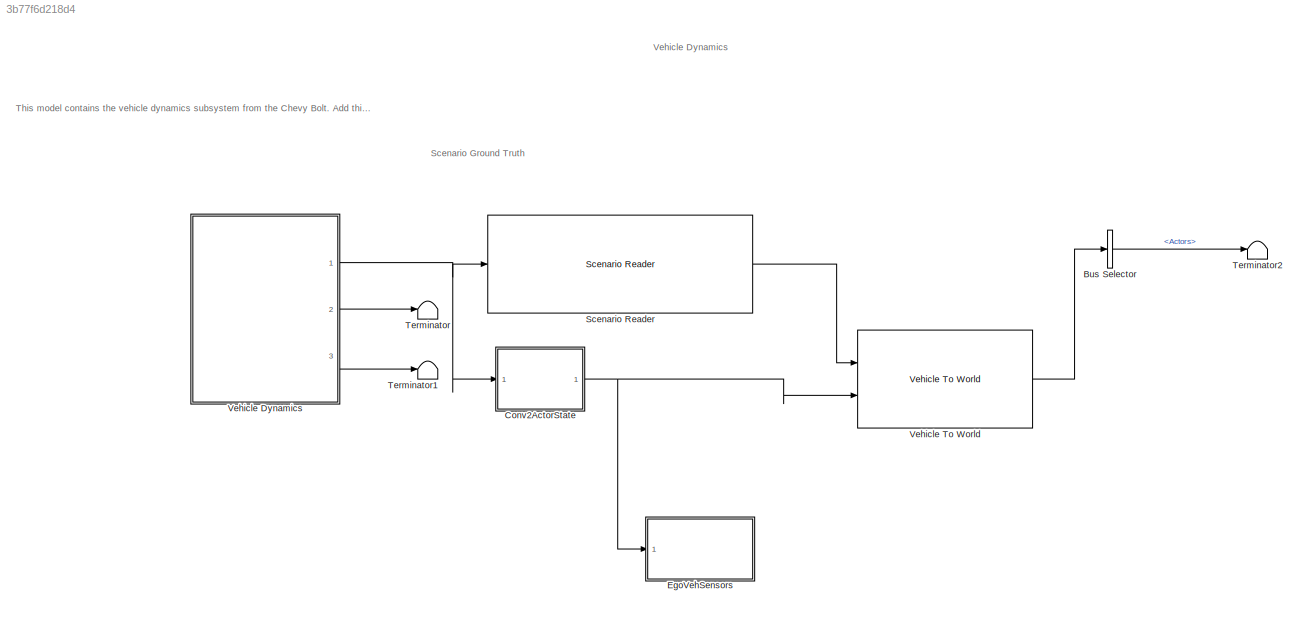
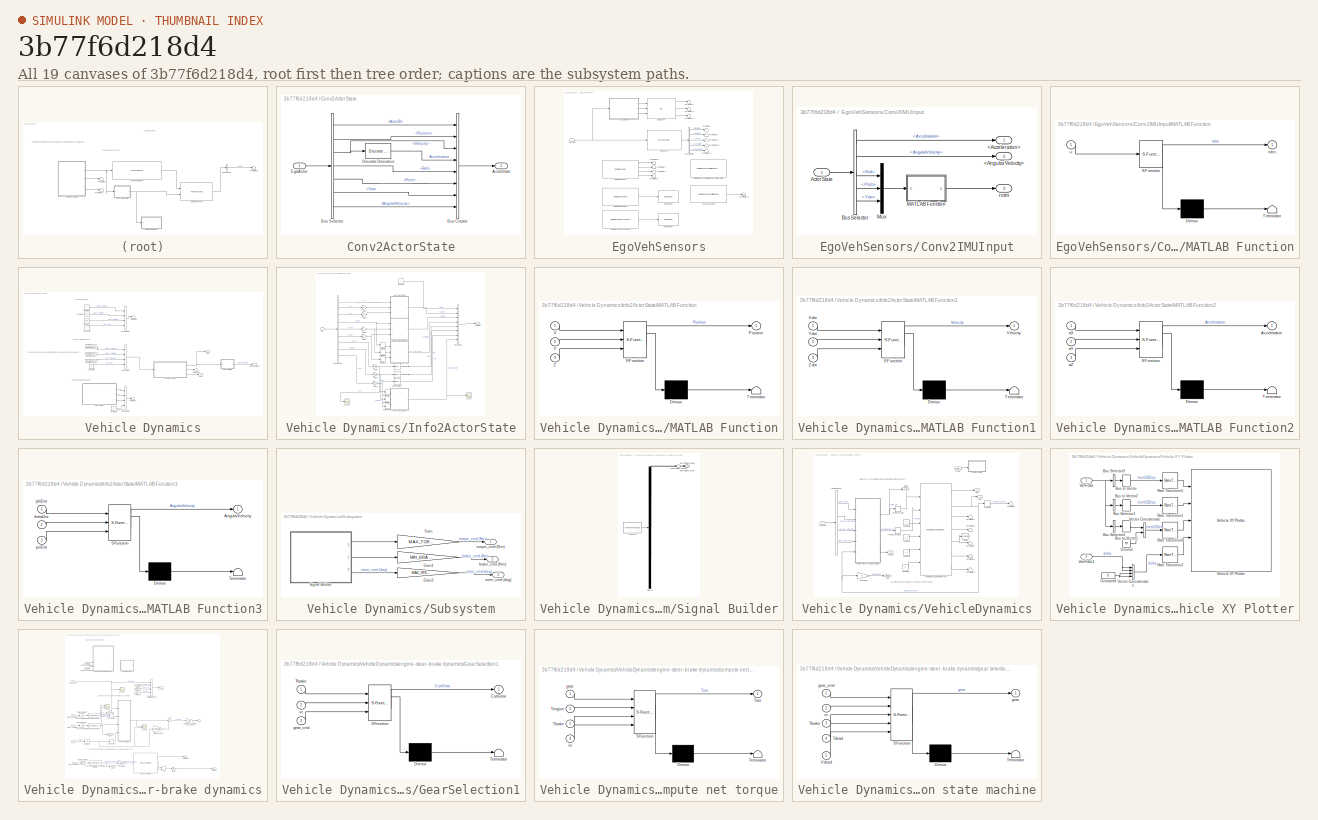
[diagram: thumbnail index - all 19 canvases of the model, root first then tree order]
MODEL slx_3b77f6d218d4
KIND model
CONFIG AbsTol = auto
CONFIG EnableMultiTasking = off
CONFIG FixedStep = auto
CONFIG MaxStep = auto
CONFIG MinStep = auto
CONFIG RelTol = 1e-3
CONFIG SampleTimeConstraint = Unconstrained
CONFIG SolverName = FixedStepAuto
CONFIG StartTime = 0.0
CONFIG StopTime = stopTime
WORKSPACE source: mxarray member
WORKSPACE firstWarning = 1
WORKSPACE originalScenarioChecksum = '114339432DE22364D47BB28FC96DC10C'
BLOCK [BusSelector] Bus Selector
  OutputSignals = Actors
  Ports = [1, 1]
BLOCK [SubSystem] Conv2ActorState
  Ports = [1, 1]
  RequestExecContextInheritance = off
  TreatAsAtomicUnit = on
BLOCK [Outport] Conv2ActorState/ActorState
BLOCK [BusCreator] Conv2ActorState/Bus Creator
  DisplayOption = bar
  InheritFromInputs = on
  Inputs = ActorID,Position,Velocity,Acceleration,Roll,Pitch,Yaw,AngularVelocity
  NonVirtualBus = on
  OutDataTypeStr = Bus: BusActorState
  Ports = [8, 1]
BLOCK [BusSelector] Conv2ActorState/Bus Selector
  OutputSignals = ActorID,Position,Velocity,Roll,Pitch,Yaw,AngularVelocity
  Ports = [1, 7]
BLOCK [Reference] Conv2ActorState/Discrete Derivative  REF=simulink/Discrete/Discrete Derivative
  Ports = [1, 1]
  SourceBlock = simulink/Discrete/Discrete Derivative
  SourceProductBaseCode = SL
  SourceType = Discrete Derivative
BLOCK [Inport] Conv2ActorState/EgoActor
BLOCK [SubSystem] EgoVehSensors
  Ports = [1]
  RequestExecContextInheritance = off
BLOCK [Inport] EgoVehSensors/ActorState
BLOCK [BusSelector] EgoVehSensors/Bus Selector
  OutputSignals = Orientation,Position,Velocity,Acceleration,AngularVelocity
  Ports = [1, 5]
BLOCK [SubSystem] EgoVehSensors/Conv2IMUInput
  Ports = [1, 3]
  RequestExecContextInheritance = off
  TreatAsAtomicUnit = on
BLOCK [Outport] EgoVehSensors/Conv2IMUInput/<Acceleration>
BLOCK [Outport] EgoVehSensors/Conv2IMUInput/<AngularVelocity>
  Port = 2
BLOCK [Inport] EgoVehSensors/Conv2IMUInput/ActorState
BLOCK [BusSelector] EgoVehSensors/Conv2IMUInput/Bus Selector
  OutputSignals = Acceleration,AngularVelocity,Roll,Pitch,Yaw
  Ports = [1, 5]
BLOCK [SubSystem] EgoVehSensors/Conv2IMUInput/MATLAB Function
  ErrorFcn = Stateflow.Translate.translate
  PermitHierarchicalResolution = ExplicitOnly
  Ports = [1, 1]
  RequestExecContextInheritance = off
  SFBlockType = MATLAB Function
  TreatAsAtomicUnit = on
BLOCK [Demux] EgoVehSensors/Conv2IMUInput/MATLAB Function/ Demux 
  Outputs = 1
  Ports = [1, 1]
BLOCK [S-Function] EgoVehSensors/Conv2IMUInput/MATLAB Function/ SFunction 
  EnableBusSupport = on
  FunctionName = sf_sfun
  PortCounts = [1 2]
  Ports = [1, 2]
  SFcnIsStateOwnerBlock = off
  SFunctionDeploymentMode = off
  Tag = Stateflow S-Function 5
BLOCK [Terminator] EgoVehSensors/Conv2IMUInput/MATLAB Function/ Terminator 
BLOCK [Outport] EgoVehSensors/Conv2IMUInput/MATLAB Function/rotm
BLOCK [Inport] EgoVehSensors/Conv2IMUInput/MATLAB Function/u
BLOCK [Mux] EgoVehSensors/Conv2IMUInput/Mux
  DisplayOption = bar
  Inputs = 3
  Ports = [3, 1]
BLOCK [Outport] EgoVehSensors/Conv2IMUInput/rotm
  Port = 3
BLOCK [Reference] EgoVehSensors/Forward Looking  REF=sim3dprobsensorlib/Simulation 3D Probabilistic Radar
  Commented = on
  Ports = [0, 1]
  Priority = 1
  SourceBlock = sim3dprobsensorlib/Simulation 3D Probabilistic Radar
  SourceProductBaseCode = AE,DR,UV,VE
  SourceType = Simulation 3D Probabilistic Radar
BLOCK [Reference] EgoVehSensors/IMUSensor  REF=mspsensorlib/IMU
  Ports = [3, 3]
  SourceBlock = mspsensorlib/IMU
  SourceProductBaseCode = TF,NV
  SourceType = fusion.simulink.imuSensor
BLOCK [MATLABSystem] EgoVehSensors/INS Sensor
  AccelerationAccuracy = 0.05
  AngularVelocityAccuracy = 0.5
  MaskDisplay = disp('insSensorBlk');\nport_label('input',1,'ActorStateIn');\nport_label('output',1,'insMeas');
  MaskType = insSensorBlk
  MountingLocation = [ 0, 0, 0 ]
  OutputBusName1 = BusINSMeas
  PitchAccuracy = 0.2
  Ports = [1, 1]
  PositionAccuracy = [ 1, 1, 1 ]
  PositionErrorFactor = [ 0, 0, 0 ]
  RollAccuracy = 0.2
  SimulateUsing = Interpreted execution
  System = insSensorBlk
  VelocityAccuracy = 0.1
  YawAccuracy = 1
BLOCK [Reference] EgoVehSensors/Simulation 3D Camera  REF=sim3dcameralib/Simulation 3D Camera
  Commented = on
  Ports = [0, 1]
  Priority = 1
  SourceBlock = sim3dcameralib/Simulation 3D Camera
  SourceProductBaseCode = AE,DR,UV,VE
  SourceType = Simulation 3D Camera
BLOCK [Reference] EgoVehSensors/Simulation 3D Fisheye Camera  REF=sim3dcameralib/Simulation 3D Fisheye Camera
  Commented = on
  Ports = [0, 1]
  Priority = 1
  SourceBlock = sim3dcameralib/Simulation 3D Fisheye Camera
  SourceProductBaseCode = AE,DR,UV,VE
  SourceType = Simulation 3D Fisheye Camera
BLOCK [Reference] EgoVehSensors/Simulation 3D Lidar  REF=sim3dphyssensorlib/Simulation 3D Lidar
  Commented = on
  Ports = [0, 4]
  Priority = 1
  SourceBlock = sim3dphyssensorlib/Simulation 3D Lidar
  SourceProductBaseCode = AE,DR,UV,VE
  SourceType = Simulation 3D Lidar
BLOCK [Reference] EgoVehSensors/Simulation 3D Probabilistic Radar Configuration  REF=sim3dprobsensorlib/Simulation 3D Probabilistic Radar Configuration
  Commented = on
  Ports = []
  SourceBlock = sim3dprobsensorlib/Simulation 3D Probabilistic Radar Configuration
  SourceProductBaseCode = AE,DR,UV,VE
  SourceType = Simulation 3D Probabilistic Radar Configuration
BLOCK [Terminator] EgoVehSensors/Terminator
BLOCK [Terminator] EgoVehSensors/Terminator1
  Commented = on
BLOCK [Terminator] EgoVehSensors/Terminator10
BLOCK [Terminator] EgoVehSensors/Terminator11
BLOCK [Terminator] EgoVehSensors/Terminator12
  Commented = on
BLOCK [Terminator] EgoVehSensors/Terminator2
BLOCK [Terminator] EgoVehSensors/Terminator3
BLOCK [Terminator] EgoVehSensors/Terminator4
BLOCK [Terminator] EgoVehSensors/Terminator5
  Commented = on
BLOCK [Terminator] EgoVehSensors/Terminator6
  Commented = on
BLOCK [Terminator] EgoVehSensors/Terminator7
  Commented = on
BLOCK [Terminator] EgoVehSensors/Terminator8
BLOCK [Terminator] EgoVehSensors/Terminator9
BLOCK [VideoViewer] EgoVehSensors/Video Viewer
  Commented = on
  FigPos = [1958 858 1025 616]
  Ports = [1]
  ScopeSpecificationString = vipscopes.VideoViewerScopeCfg('CurrentConfiguration', extmgr.ConfigurationSet(extmgr.Configuration('Core','General UI',true),extmgr.Configuration('Core','Source UI',true),extmgr.Configuration('Sources','WiredSimulink',true),extmgr.Configuration('Visuals','Video',true),extmgr.Configuration('Tools','Image Navigation Tools',true),extmgr.Configuration('Tools','Image Tool',true),extmgr.Configuration('T...<+77ch>
BLOCK [VideoViewer] EgoVehSensors/Video Viewer1
  Commented = on
  FigPos = [2014 821 1025 616]
  Ports = [1]
  ScopeSpecificationString = vipscopes.VideoViewerScopeCfg('CurrentConfiguration', extmgr.ConfigurationSet(extmgr.Configuration('Core','General UI',true),extmgr.Configuration('Core','Source UI',true),extmgr.Configuration('Sources','WiredSimulink',true),extmgr.Configuration('Visuals','Video',true),extmgr.Configuration('Tools','Image Navigation Tools',true),extmgr.Configuration('Tools','Image Tool',true),extmgr.Configuration('T...<+77ch>
BLOCK [Reference] Scenario Reader  REF=drivingscenarioandsensors/Scenario Reader
  Ports = [1, 1]
  SourceBlock = drivingscenarioandsensors/Scenario Reader
  SourceProductBaseCode = DR
  SourceType = driving.scenario.internal.ScenarioReader
BLOCK [Terminator] Terminator
BLOCK [Terminator] Terminator1
BLOCK [Terminator] Terminator2
BLOCK [SubSystem] Vehicle Dynamics
  Ports = [0, 3]
  RequestExecContextInheritance = off
BLOCK [BusCreator] Vehicle Dynamics/Bus Creator1
  DisplayOption = bar
  InheritFromInputs = on
  Inputs = 4
  Ports = [4, 1]
BLOCK [BusCreator] Vehicle Dynamics/Bus Creator2
  DisplayOption = bar
  InheritFromInputs = on
  Inputs = 4
  Ports = [4, 1]
BLOCK [BusCreator] Vehicle Dynamics/Bus Creator3
  DisplayOption = bar
  InheritFromInputs = on
  Inputs = 4
  Ports = [4, 1]
BLOCK [Constant] Vehicle Dynamics/Constant
  Commented = on
  Value = 120
BLOCK [Constant] Vehicle Dynamics/Constant1
  Commented = on
  Value = 0
BLOCK [Constant] Vehicle Dynamics/Constant2
  Commented = on
  Value = -1000
BLOCK [Constant] Vehicle Dynamics/Constant3
BLOCK [Constant] Vehicle Dynamics/Constant4
BLOCK [Constant] Vehicle Dynamics/Constant5
BLOCK [Outport] Vehicle Dynamics/EgoVehStates
BLOCK [FromWorkspace] Vehicle Dynamics/From Workspace
  SampleTime = ts
  VariableName = BRAKE_CMD
BLOCK [FromWorkspace] Vehicle Dynamics/From Workspace1
  SampleTime = ts
  VariableName = STEER_CMD
BLOCK [FromWorkspace] Vehicle Dynamics/From Workspace4
  SampleTime = ts
  VariableName = TORQUE_CMD
BLOCK [Outport] Vehicle Dynamics/Info
  Port = 2
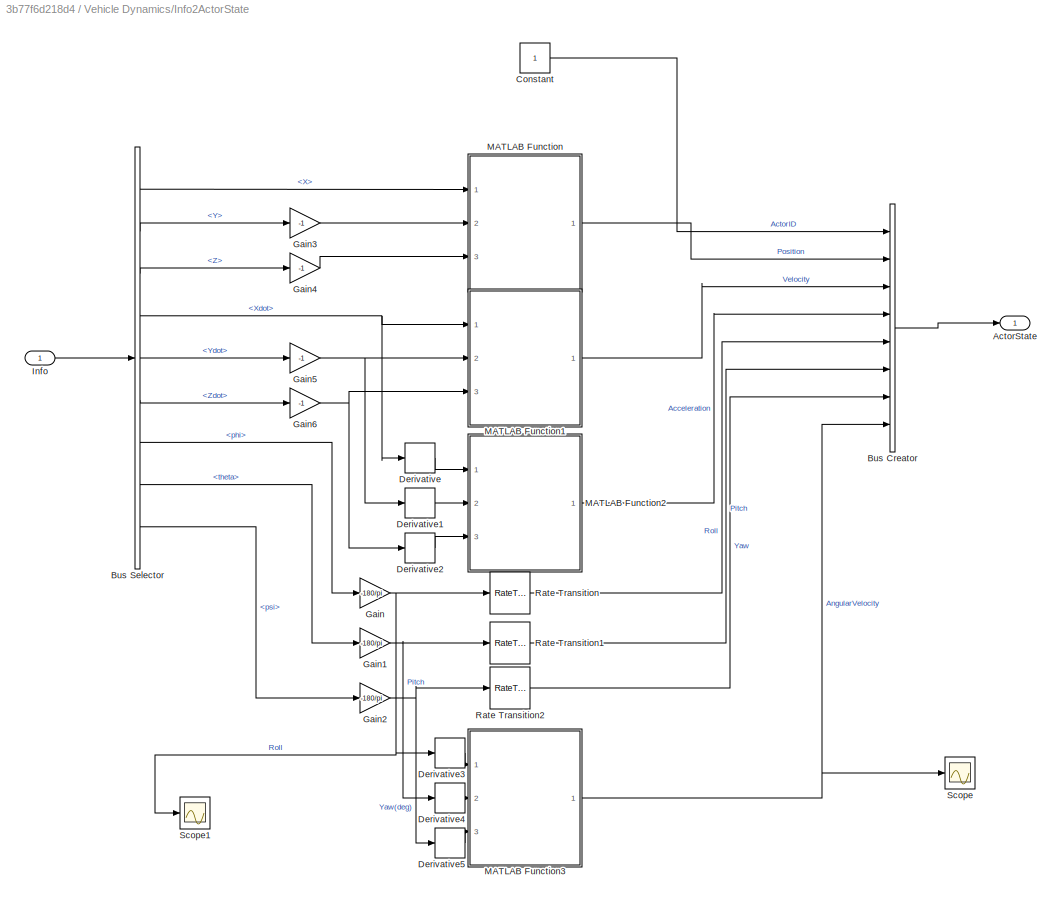
BLOCK [SubSystem] Vehicle Dynamics/Info2ActorState
  Ports = [1, 1]
  RequestExecContextInheritance = off
BLOCK [Outport] Vehicle Dynamics/Info2ActorState/ActorState
BLOCK [BusCreator] Vehicle Dynamics/Info2ActorState/Bus Creator
  DisplayOption = bar
  InheritFromInputs = on
  Inputs = ActorID,Position,Velocity,Acceleration,Roll,Pitch,Yaw,AngularVelocity
  NonVirtualBus = on
  OutDataTypeStr = Bus: BusActorState
  Ports = [8, 1]
BLOCK [BusSelector] Vehicle Dynamics/Info2ActorState/Bus Selector
  OutputSignals = InertFrm.Cg.Disp.X,InertFrm.Cg.Disp.Y,InertFrm.Cg.Disp.Z,InertFrm.Cg.Vel.Xdot,InertFrm.Cg.Vel.Ydot,InertFrm.Cg.Vel.Zdot,InertFrm.Cg.Ang.phi,InertFrm.Cg.Ang.theta,InertFrm.Cg.Ang.psi
  Ports = [1, 9]
BLOCK [Constant] Vehicle Dynamics/Info2ActorState/Constant
  SampleTime = 0.05
BLOCK [Derivative] Vehicle Dynamics/Info2ActorState/Derivative
BLOCK [Derivative] Vehicle Dynamics/Info2ActorState/Derivative1
BLOCK [Derivative] Vehicle Dynamics/Info2ActorState/Derivative2
BLOCK [Derivative] Vehicle Dynamics/Info2ActorState/Derivative3
BLOCK [Derivative] Vehicle Dynamics/Info2ActorState/Derivative4
BLOCK [Derivative] Vehicle Dynamics/Info2ActorState/Derivative5
BLOCK [Gain] Vehicle Dynamics/Info2ActorState/Gain
  Gain = -180/pi
BLOCK [Gain] Vehicle Dynamics/Info2ActorState/Gain1
  Gain = -180/pi
BLOCK [Gain] Vehicle Dynamics/Info2ActorState/Gain2
  Gain = -180/pi
BLOCK [Gain] Vehicle Dynamics/Info2ActorState/Gain3
  Gain = -1
BLOCK [Gain] Vehicle Dynamics/Info2ActorState/Gain4
  Gain = -1
BLOCK [Gain] Vehicle Dynamics/Info2ActorState/Gain5
  Gain = -1
BLOCK [Gain] Vehicle Dynamics/Info2ActorState/Gain6
  Gain = -1
BLOCK [Inport] Vehicle Dynamics/Info2ActorState/Info
BLOCK [SubSystem] Vehicle Dynamics/Info2ActorState/MATLAB Function
  ErrorFcn = Stateflow.Translate.translate
  PermitHierarchicalResolution = ExplicitOnly
  Ports = [3, 1]
  RequestExecContextInheritance = off
  SFBlockType = MATLAB Function
  SystemSampleTime = 0.05
  TreatAsAtomicUnit = on
BLOCK [Demux] Vehicle Dynamics/Info2ActorState/MATLAB Function/ Demux 
  Outputs = 1
  Ports = [1, 1]
BLOCK [S-Function] Vehicle Dynamics/Info2ActorState/MATLAB Function/ SFunction 
  EnableBusSupport = on
  FunctionName = sf_sfun
  PortCounts = [3 2]
  Ports = [3, 2]
  SFcnIsStateOwnerBlock = off
  SFunctionDeploymentMode = off
  Tag = Stateflow S-Function 8
BLOCK [Terminator] Vehicle Dynamics/Info2ActorState/MATLAB Function/ Terminator 
BLOCK [Outport] Vehicle Dynamics/Info2ActorState/MATLAB Function/Position
BLOCK [Inport] Vehicle Dynamics/Info2ActorState/MATLAB Function/X
BLOCK [Inport] Vehicle Dynamics/Info2ActorState/MATLAB Function/Y
  Port = 2
BLOCK [Inport] Vehicle Dynamics/Info2ActorState/MATLAB Function/Z
  Port = 3
BLOCK [SubSystem] Vehicle Dynamics/Info2ActorState/MATLAB Function1
  ErrorFcn = Stateflow.Translate.translate
  PermitHierarchicalResolution = ExplicitOnly
  Ports = [3, 1]
  RequestExecContextInheritance = off
  SFBlockType = MATLAB Function
  SystemSampleTime = 0.05
  TreatAsAtomicUnit = on
BLOCK [Demux] Vehicle Dynamics/Info2ActorState/MATLAB Function1/ Demux 
  Outputs = 1
  Ports = [1, 1]
BLOCK [S-Function] Vehicle Dynamics/Info2ActorState/MATLAB Function1/ SFunction 
  EnableBusSupport = on
  FunctionName = sf_sfun
  PortCounts = [3 2]
  Ports = [3, 2]
  SFcnIsStateOwnerBlock = off
  SFunctionDeploymentMode = off
  Tag = Stateflow S-Function 9
BLOCK [Terminator] Vehicle Dynamics/Info2ActorState/MATLAB Function1/ Terminator 
BLOCK [Outport] Vehicle Dynamics/Info2ActorState/MATLAB Function1/Velocity
BLOCK [Inport] Vehicle Dynamics/Info2ActorState/MATLAB Function1/Xdot
BLOCK [Inport] Vehicle Dynamics/Info2ActorState/MATLAB Function1/Ydot
  Port = 2
BLOCK [Inport] Vehicle Dynamics/Info2ActorState/MATLAB Function1/Zdot
  Port = 3
BLOCK [SubSystem] Vehicle Dynamics/Info2ActorState/MATLAB Function2
  ErrorFcn = Stateflow.Translate.translate
  PermitHierarchicalResolution = ExplicitOnly
  Ports = [3, 1]
  RequestExecContextInheritance = off
  SFBlockType = MATLAB Function
  SystemSampleTime = 0.05
  TreatAsAtomicUnit = on
BLOCK [Demux] Vehicle Dynamics/Info2ActorState/MATLAB Function2/ Demux 
  Outputs = 1
  Ports = [1, 1]
BLOCK [S-Function] Vehicle Dynamics/Info2ActorState/MATLAB Function2/ SFunction 
  EnableBusSupport = on
  FunctionName = sf_sfun
  PortCounts = [3 2]
  Ports = [3, 2]
  SFcnIsStateOwnerBlock = off
  SFunctionDeploymentMode = off
  Tag = Stateflow S-Function 10
BLOCK [Terminator] Vehicle Dynamics/Info2ActorState/MATLAB Function2/ Terminator 
BLOCK [Outport] Vehicle Dynamics/Info2ActorState/MATLAB Function2/Acceleration
BLOCK [Inport] Vehicle Dynamics/Info2ActorState/MATLAB Function2/aX
BLOCK [Inport] Vehicle Dynamics/Info2ActorState/MATLAB Function2/aY
  Port = 2
BLOCK [Inport] Vehicle Dynamics/Info2ActorState/MATLAB Function2/aZ
  Port = 3
BLOCK [SubSystem] Vehicle Dynamics/Info2ActorState/MATLAB Function3
  ErrorFcn = Stateflow.Translate.translate
  PermitHierarchicalResolution = ExplicitOnly
  Ports = [3, 1]
  RequestExecContextInheritance = off
  SFBlockType = MATLAB Function
  SystemSampleTime = 0.05
  TreatAsAtomicUnit = on
BLOCK [Demux] Vehicle Dynamics/Info2ActorState/MATLAB Function3/ Demux 
  Outputs = 1
  Ports = [1, 1]
BLOCK [S-Function] Vehicle Dynamics/Info2ActorState/MATLAB Function3/ SFunction 
  EnableBusSupport = on
  FunctionName = sf_sfun
  PortCounts = [3 2]
  Ports = [3, 2]
  SFcnIsStateOwnerBlock = off
  SFunctionDeploymentMode = off
  Tag = Stateflow S-Function 11
BLOCK [Terminator] Vehicle Dynamics/Info2ActorState/MATLAB Function3/ Terminator 
BLOCK [Outport] Vehicle Dynamics/Info2ActorState/MATLAB Function3/AngularVelocity
BLOCK [Inport] Vehicle Dynamics/Info2ActorState/MATLAB Function3/phiDot
BLOCK [Inport] Vehicle Dynamics/Info2ActorState/MATLAB Function3/psiDot
  Port = 3
BLOCK [Inport] Vehicle Dynamics/Info2ActorState/MATLAB Function3/thetaDot
  Port = 2
BLOCK [RateTransition] Vehicle Dynamics/Info2ActorState/Rate Transition
  OutPortSampleTime = 0.05
BLOCK [RateTransition] Vehicle Dynamics/Info2ActorState/Rate Transition1
  OutPortSampleTime = 0.05
BLOCK [RateTransition] Vehicle Dynamics/Info2ActorState/Rate Transition2
  OutPortSampleTime = 0.05
BLOCK [Scope] Vehicle Dynamics/Info2ActorState/Scope
  Floating = off
  NumInputPorts = 1
  Ports = [1]
  ScopeSpecificationString = Simulink.scopes.TimeScopeBlockCfg('CurrentConfiguration', extmgr.ConfigurationSet(extmgr.Configuration('Core','General UI',true),extmgr.Configuration('Core','Source UI',true),extmgr.Configuration('Sources','WiredSimulink',true,'DataLoggingVariableName','ScopeData1'),extmgr.Configuration('Visuals','Time Domain',true,'SerializedDisplays',{struct('MinYLimReal','-1.00000','MaxYLimReal','1.00000','YLab...<+1416ch>
BLOCK [Scope] Vehicle Dynamics/Info2ActorState/Scope1
  Floating = off
  NumInputPorts = 1
  Ports = [1]
  ScopeSpecificationString = Simulink.scopes.TimeScopeBlockCfg('CurrentConfiguration', extmgr.ConfigurationSet(extmgr.Configuration('Core','General UI',true),extmgr.Configuration('Core','Source UI',true),extmgr.Configuration('Sources','WiredSimulink',true,'DataLoggingVariableName','ScopeData2'),extmgr.Configuration('Visuals','Time Domain',true),extmgr.Configuration('Tools','Plot Navigation',true),extmgr.Configuration('Tools',...<+40ch>
BLOCK [SubSystem] Vehicle Dynamics/Subsystem
  Commented = on
  Ports = [0, 3]
  RequestExecContextInheritance = off
BLOCK [Gain] Vehicle Dynamics/Subsystem/Gain
  Gain = MAX_TORQUE*0.1
BLOCK [Gain] Vehicle Dynamics/Subsystem/Gain1
  Gain = MIN_BRAKE*0.06
BLOCK [Gain] Vehicle Dynamics/Subsystem/Gain2
  Gain = MAX_STEER/4.5
BLOCK [SubSystem] Vehicle Dynamics/Subsystem/Signal Builder
  ClipboardFcn = sigbuilder_block('clipboard');
  CloseFcn = sigbuilder_block('close');
  ContinueFcn = sigbuilder_block('continue');
  CopyFcn = sigbuilder_block('copy');
  DeleteFcn = sigbuilder_block('delete');
  LoadFcn = sigbuilder_block('load');
  MaskHideContents = on
  ModelCloseFcn = sigbuilder_block('modelClose');
  NameChangeFcn = sigbuilder_block('namechange');
  OpenFcn = sigbuilder_block('open',[0 30 960 455.5 ]);
  PauseFcn = sigbuilder_block('pause');
  Ports = [0, 3]
  PreSaveFcn = sigbuilder_block('preSave');
  RequestExecContextInheritance = off
  StartFcn = sigbuilder_block('start');
  StopFcn = sigbuilder_block('stop');
  Tag = STV Subsys
BLOCK [Demux] Vehicle Dynamics/Subsystem/Signal Builder/Demux
  DisplayOption = none
  Outputs = 3
  Ports = [1, 3]
  Tag = STV Demux
BLOCK [FromWorkspace] Vehicle Dynamics/Subsystem/Signal Builder/FromWs
  Tag = STV FromWs
  VariableName = tuvar
BLOCK [Outport] Vehicle Dynamics/Subsystem/Signal Builder/Normalized Brake
  Port = 2
  Tag = STV Outport
BLOCK [Outport] Vehicle Dynamics/Subsystem/Signal Builder/Normalized Steer
  Port = 3
  Tag = STV Outport
BLOCK [Outport] Vehicle Dynamics/Subsystem/Signal Builder/Normalized Torque
  Tag = STV Outport
BLOCK [Outport] Vehicle Dynamics/Subsystem/brake_cmd (Nm)
  Port = 2
BLOCK [Outport] Vehicle Dynamics/Subsystem/steer_cmd (deg)
  Port = 3
BLOCK [Outport] Vehicle Dynamics/Subsystem/torque_cmd (Nm)
BLOCK [Terminator] Vehicle Dynamics/Terminator
BLOCK [Terminator] Vehicle Dynamics/Terminator1
BLOCK [Terminator] Vehicle Dynamics/Terminator2
BLOCK [SubSystem] Vehicle Dynamics/VehicleDynamics
  Ports = [1, 3]
  RequestExecContextInheritance = off
BLOCK [Inport] Vehicle Dynamics/VehicleDynamics/CAN_cmd
BLOCK [Outport] Vehicle Dynamics/VehicleDynamics/CAN_fbk
  Port = 2
  VectorParamsAs1DForOutWhenUnconnected = off
BLOCK [Constant] Vehicle Dynamics/VehicleDynamics/Constant1
  Value = X_o
BLOCK [Constant] Vehicle Dynamics/VehicleDynamics/Constant2
  Value = 0
BLOCK [Constant] Vehicle Dynamics/VehicleDynamics/Constant3
  Value = -Y_o
BLOCK [Constant] Vehicle Dynamics/VehicleDynamics/Constant4
  Value = 0
BLOCK [Derivative] Vehicle Dynamics/VehicleDynamics/Derivative
BLOCK [FirstOrderHold] Vehicle Dynamics/VehicleDynamics/First Order Hold
  ErrorTolerance = inf
BLOCK [FirstOrderHold] Vehicle Dynamics/VehicleDynamics/First Order Hold1
  ErrorTolerance = inf
BLOCK [From] Vehicle Dynamics/VehicleDynamics/From1
  Commented = on
  GotoTag = delta
BLOCK [Goto] Vehicle Dynamics/VehicleDynamics/Goto
  GotoTag = omega
BLOCK [Goto] Vehicle Dynamics/VehicleDynamics/Goto1
  GotoTag = delta
BLOCK [Goto] Vehicle Dynamics/VehicleDynamics/Goto2
  GotoTag = yawrate
  TagVisibility = global
BLOCK [Outport] Vehicle Dynamics/VehicleDynamics/Info
BLOCK [Terminator] Vehicle Dynamics/VehicleDynamics/Terminator
BLOCK [Terminator] Vehicle Dynamics/VehicleDynamics/Terminator1
BLOCK [Terminator] Vehicle Dynamics/VehicleDynamics/Terminator2
BLOCK [Terminator] Vehicle Dynamics/VehicleDynamics/Terminator3
BLOCK [Terminator] Vehicle Dynamics/VehicleDynamics/Terminator4
BLOCK [Terminator] Vehicle Dynamics/VehicleDynamics/Terminator5
BLOCK [Gain] Vehicle Dynamics/VehicleDynamics/TireRadius
  Gain = R
BLOCK [Reference] Vehicle Dynamics/VehicleDynamics/Vehicle Body 3DOF Single Track  REF=autolibshared/Vehicle Body 3DOF Single Track
  Ports = [6, 7]
  SourceBlock = autolibshared/Vehicle Body 3DOF Single Track
  SourceProductBaseCode = PW,DR,MT,UV,VE
  SourceType = Vehicle Body 3DOF Lateral
BLOCK [SubSystem] Vehicle Dynamics/VehicleDynamics/Vehicle XY Plotter
  Commented = on
  Ports = [2]
  RequestExecContextInheritance = off
BLOCK [BusSelector] Vehicle Dynamics/VehicleDynamics/Vehicle XY Plotter/Bus Selector1
  OutputAsBus = on
  OutputSignals = InertFrm.Cg.Ang.phi,InertFrm.Cg.Ang.theta,InertFrm.Cg.Ang.psi
  Ports = [1, 1]
BLOCK [BusSelector] Vehicle Dynamics/VehicleDynamics/Vehicle XY Plotter/Bus Selector3
  OutputAsBus = on
  OutputSignals = InertFrm.Geom.Disp.X,InertFrm.Geom.Disp.Y,InertFrm.Geom.Disp.Z
  Ports = [1, 1]
BLOCK [BusSelector] Vehicle Dynamics/VehicleDynamics/Vehicle XY Plotter/Bus Selector4
  OutputAsBus = on
  OutputSignals = InertFrm.Cg.Vel.Xdot,InertFrm.Cg.Vel.Ydot
  Ports = [1, 1]
BLOCK [BusToVector] Vehicle Dynamics/VehicleDynamics/Vehicle XY Plotter/Bus to Vector
BLOCK [BusToVector] Vehicle Dynamics/VehicleDynamics/Vehicle XY Plotter/Bus to Vector1
BLOCK [BusToVector] Vehicle Dynamics/VehicleDynamics/Vehicle XY Plotter/Bus to Vector2
BLOCK [Constant] Vehicle Dynamics/VehicleDynamics/Vehicle XY Plotter/Constant4
  Value = 0
BLOCK [Ground] Vehicle Dynamics/VehicleDynamics/Vehicle XY Plotter/Ground
BLOCK [RateTransition] Vehicle Dynamics/VehicleDynamics/Vehicle XY Plotter/Rate Transition1
  OutPortSampleTime = pltDT
BLOCK [RateTransition] Vehicle Dynamics/VehicleDynamics/Vehicle XY Plotter/Rate Transition2
  OutPortSampleTime = pltDT
BLOCK [RateTransition] Vehicle Dynamics/VehicleDynamics/Vehicle XY Plotter/Rate Transition5
  OutPortSampleTime = pltDT
BLOCK [RateTransition] Vehicle Dynamics/VehicleDynamics/Vehicle XY Plotter/Rate Transition6
  OutPortSampleTime = pltDT
BLOCK [Concatenate] Vehicle Dynamics/VehicleDynamics/Vehicle XY Plotter/Vector Concatenate
  Ports = [2, 1]
BLOCK [Concatenate] Vehicle Dynamics/VehicleDynamics/Vehicle XY Plotter/Vector Concatenate1
  NumInputs = 4
  Ports = [4, 1]
BLOCK [Inport] Vehicle Dynamics/VehicleDynamics/Vehicle XY Plotter/VehFdbk
BLOCK [Inport] Vehicle Dynamics/VehicleDynamics/Vehicle XY Plotter/VehFdbk1
  Port = 2
BLOCK [Reference] Vehicle Dynamics/VehicleDynamics/Vehicle XY Plotter/Vehicle XY Plotter  REF=vehdynlibviscommon/Vehicle XY Plotter
  Ports = [5]
  SourceBlock = vehdynlibviscommon/Vehicle XY Plotter
  SourceProductName = The database <userpath>\AppData\Roaming\MathWorks\MATLAB\R2018b\slblocks_master.db is locked, or a table in the database is locked. (database is locked)
  SourceType = Vehicle XY Plotter
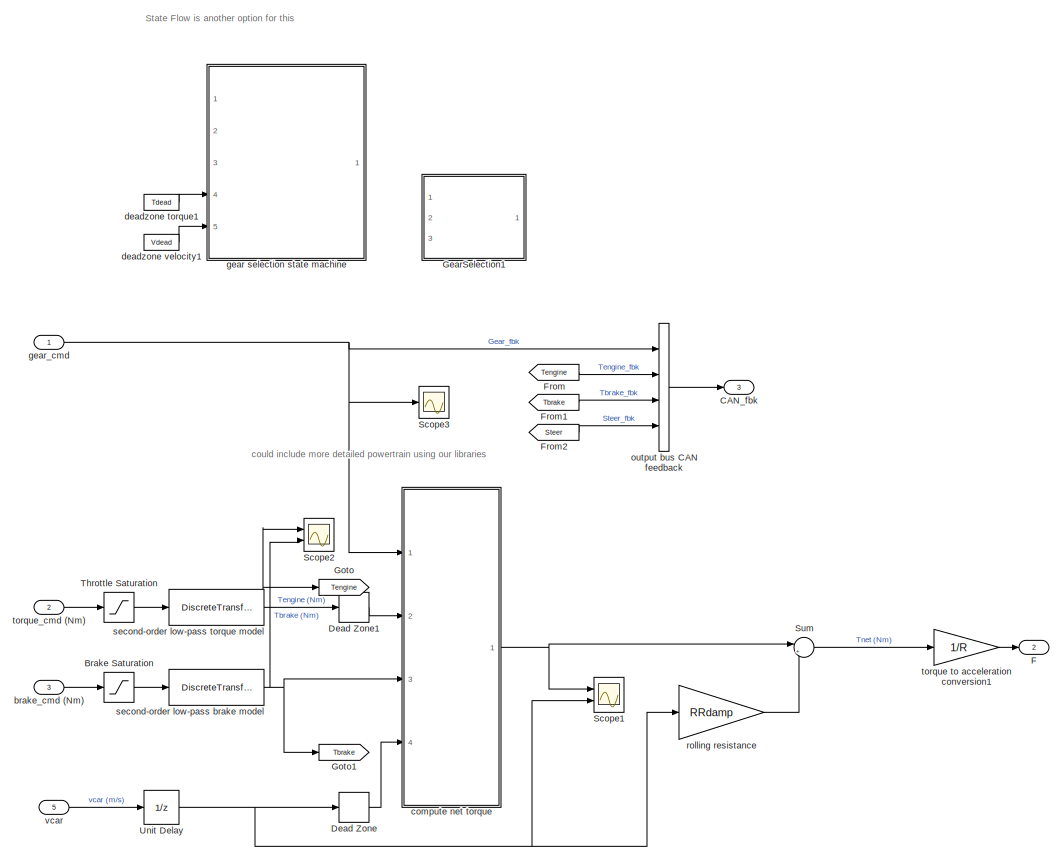
[diagram: Vehicle Dynamics/VehicleDynamics/engine-steer-brake dynamics - part 1/2, most of the canvas]
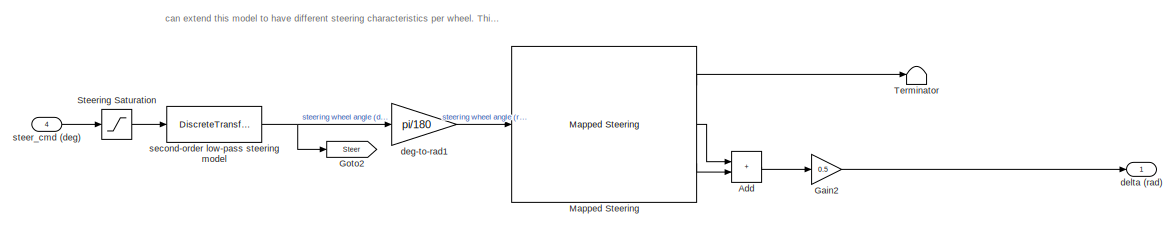
[diagram: Vehicle Dynamics/VehicleDynamics/engine-steer-brake dynamics - part 2/2, full width, bottom band]
BLOCK [SubSystem] Vehicle Dynamics/VehicleDynamics/engine-steer-brake dynamics
  Ports = [5, 3]
  RequestExecContextInheritance = off
BLOCK [Sum] Vehicle Dynamics/VehicleDynamics/engine-steer-brake dynamics/Add
  IconShape = rectangular
  Ports = [2, 1]
BLOCK [Saturate] Vehicle Dynamics/VehicleDynamics/engine-steer-brake dynamics/Brake Saturation
  LowerLimit = MIN_BRAKE
  UpperLimit = MAX_BRAKE
BLOCK [Outport] Vehicle Dynamics/VehicleDynamics/engine-steer-brake dynamics/CAN_fbk
  Port = 3
  VectorParamsAs1DForOutWhenUnconnected = off
BLOCK [DeadZone] Vehicle Dynamics/VehicleDynamics/engine-steer-brake dynamics/Dead Zone
  LowerValue = -Vdead
  UpperValue = Vdead
BLOCK [DeadZone] Vehicle Dynamics/VehicleDynamics/engine-steer-brake dynamics/Dead Zone1
  LowerValue = -Tdead
  UpperValue = Tdead
BLOCK [Outport] Vehicle Dynamics/VehicleDynamics/engine-steer-brake dynamics/F
  Port = 2
  VectorParamsAs1DForOutWhenUnconnected = off
BLOCK [From] Vehicle Dynamics/VehicleDynamics/engine-steer-brake dynamics/From
  GotoTag = Tengine
BLOCK [From] Vehicle Dynamics/VehicleDynamics/engine-steer-brake dynamics/From1
  GotoTag = Tbrake
BLOCK [From] Vehicle Dynamics/VehicleDynamics/engine-steer-brake dynamics/From2
  GotoTag = Steer
BLOCK [Gain] Vehicle Dynamics/VehicleDynamics/engine-steer-brake dynamics/Gain2
  Gain = 0.5
BLOCK [SubSystem] Vehicle Dynamics/VehicleDynamics/engine-steer-brake dynamics/GearSelection1
  Commented = on
  ErrorFcn = Stateflow.Translate.translate
  PermitHierarchicalResolution = ExplicitOnly
  PortSchema = {"entries":[{"content":{"sides":[{"content":{"connectorIds":["In3","In2","In1"]},"type":"ConnectorPlacement.EquallySpacedRectSide","uuid":"465e5722-891f-481b-b3b6-2b8339e8e743"},{"content":{"connectorIds":["Out1"],"side":"RIGHT"},"type":"ConnectorPlacement.EquallySpacedRectSide","uuid":"28ef13cd-41d9-4e2e-8cd9-9157abf573a9"},{"content":{"connectorIds":[],"side":"TOP"},"type":"ConnectorPlacement.Eq...<+396ch>
  Ports = [3, 1]
  RequestExecContextInheritance = off
  SFBlockType = Chart
  SystemSampleTime = ts
  TreatAsAtomicUnit = on
BLOCK [Demux] Vehicle Dynamics/VehicleDynamics/engine-steer-brake dynamics/GearSelection1/ Demux 
  Outputs = 1
  Ports = [1, 1]
BLOCK [S-Function] Vehicle Dynamics/VehicleDynamics/engine-steer-brake dynamics/GearSelection1/ SFunction 
  EnableBusSupport = on
  FunctionName = sf_sfun
  Parameters = DefaultGear,Tdead,Vdead
  PortCounts = [3 2]
  Ports = [3, 2]
  SFcnIsStateOwnerBlock = off
  SFunctionDeploymentMode = off
  Tag = Stateflow S-Function 4
BLOCK [Terminator] Vehicle Dynamics/VehicleDynamics/engine-steer-brake dynamics/GearSelection1/ Terminator 
BLOCK [Outport] Vehicle Dynamics/VehicleDynamics/engine-steer-brake dynamics/GearSelection1/CurrGear
BLOCK [Inport] Vehicle Dynamics/VehicleDynamics/engine-steer-brake dynamics/GearSelection1/Tbrake
BLOCK [Inport] Vehicle Dynamics/VehicleDynamics/engine-steer-brake dynamics/GearSelection1/gear_cmd
  Port = 3
BLOCK [Inport] Vehicle Dynamics/VehicleDynamics/engine-steer-brake dynamics/GearSelection1/vc
  Port = 2
BLOCK [Goto] Vehicle Dynamics/VehicleDynamics/engine-steer-brake dynamics/Goto
  GotoTag = Tengine
BLOCK [Goto] Vehicle Dynamics/VehicleDynamics/engine-steer-brake dynamics/Goto1
  GotoTag = Tbrake
BLOCK [Goto] Vehicle Dynamics/VehicleDynamics/engine-steer-brake dynamics/Goto2
  GotoTag = Steer
BLOCK [Reference] Vehicle Dynamics/VehicleDynamics/engine-steer-brake dynamics/Mapped Steering  REF=vehdynlibsteering/Mapped Steering
  Ports = [1, 3]
  SourceBlock = vehdynlibsteering/Mapped Steering
  SourceProductBaseCode = VE
  SourceType = Mapped Steering
BLOCK [Scope] Vehicle Dynamics/VehicleDynamics/engine-steer-brake dynamics/Scope1
  Floating = off
  NumInputPorts = 2
  Ports = [2]
  ScopeSpecificationString = Simulink.scopes.TimeScopeBlockCfg('CurrentConfiguration', extmgr.ConfigurationSet(extmgr.Configuration('Core','General UI',true),extmgr.Configuration('Core','Source UI',true),extmgr.Configuration('Sources','WiredSimulink',true,'DataLoggingVariableName','ScopeData3'),extmgr.Configuration('Visuals','Time Domain',true,'SerializedDisplays',{struct('MinYLimReal','-4915.04892','MaxYLimReal','4915.04453'...<+2339ch>
BLOCK [Scope] Vehicle Dynamics/VehicleDynamics/engine-steer-brake dynamics/Scope2
  Floating = off
  NumInputPorts = 2
  Ports = [2]
  ScopeSpecificationString = Simulink.scopes.TimeScopeBlockCfg('CurrentConfiguration', extmgr.ConfigurationSet(extmgr.Configuration('Core','General UI',true),extmgr.Configuration('Core','Source UI',true),extmgr.Configuration('Sources','WiredSimulink',true,'DataLoggingVariableName','ScopeData2'),extmgr.Configuration('Visuals','Time Domain',true,'SerializedDisplays',{struct('MinYLimReal','-4705.28234','MaxYLimReal','3027.14107'...<+1693ch>
BLOCK [Scope] Vehicle Dynamics/VehicleDynamics/engine-steer-brake dynamics/Scope3
  Floating = off
  NumInputPorts = 1
  Ports = [1]
  ScopeSpecificationString = Simulink.scopes.TimeScopeBlockCfg('CurrentConfiguration', extmgr.ConfigurationSet(extmgr.Configuration('Core','General UI',true),extmgr.Configuration('Core','Source UI',true),extmgr.Configuration('Sources','WiredSimulink',true,'DataLoggingVariableName','ScopeData3'),extmgr.Configuration('Visuals','Time Domain',true,'SerializedDisplays',{struct('MinYLimReal','0.9','MaxYLimReal','1.1','YLabelReal','...<+1393ch>
BLOCK [Saturate] Vehicle Dynamics/VehicleDynamics/engine-steer-brake dynamics/Steering Saturation
  LowerLimit = MIN_STEER
  UpperLimit = MAX_STEER
BLOCK [Sum] Vehicle Dynamics/VehicleDynamics/engine-steer-brake dynamics/Sum
  Inputs = |+-
  Ports = [2, 1]
BLOCK [Terminator] Vehicle Dynamics/VehicleDynamics/engine-steer-brake dynamics/Terminator
BLOCK [Saturate] Vehicle Dynamics/VehicleDynamics/engine-steer-brake dynamics/Throttle Saturation
  LowerLimit = MIN_TORQUE
  UpperLimit = MAX_TORQUE
BLOCK [UnitDelay] Vehicle Dynamics/VehicleDynamics/engine-steer-brake dynamics/Unit Delay
  HasFrameUpgradeWarning = on
  SampleTime = -1
BLOCK [Inport] Vehicle Dynamics/VehicleDynamics/engine-steer-brake dynamics/brake_cmd (Nm)
  Port = 3
BLOCK [SubSystem] Vehicle Dynamics/VehicleDynamics/engine-steer-brake dynamics/compute net torque
  ErrorFcn = Stateflow.Translate.translate
  PermitHierarchicalResolution = ExplicitOnly
  Ports = [4, 1]
  RequestExecContextInheritance = off
  SFBlockType = MATLAB Function
  SystemSampleTime = ts
  TreatAsAtomicUnit = on
BLOCK [Demux] Vehicle Dynamics/VehicleDynamics/engine-steer-brake dynamics/compute net torque/ Demux 
  Outputs = 1
  Ports = [1, 1]
BLOCK [S-Function] Vehicle Dynamics/VehicleDynamics/engine-steer-brake dynamics/compute net torque/ SFunction 
  EnableBusSupport = on
  FunctionName = sf_sfun
  PortCounts = [4 2]
  Ports = [4, 2]
  SFcnIsStateOwnerBlock = off
  SFunctionDeploymentMode = off
  Tag = Stateflow S-Function 13
BLOCK [Terminator] Vehicle Dynamics/VehicleDynamics/engine-steer-brake dynamics/compute net torque/ Terminator 
BLOCK [Inport] Vehicle Dynamics/VehicleDynamics/engine-steer-brake dynamics/compute net torque/Tbrake
  Port = 3
BLOCK [Inport] Vehicle Dynamics/VehicleDynamics/engine-steer-brake dynamics/compute net torque/Tengine
  Port = 2
BLOCK [Outport] Vehicle Dynamics/VehicleDynamics/engine-steer-brake dynamics/compute net torque/Tnet
  VectorParamsAs1DForOutWhenUnconnected = off
BLOCK [Inport] Vehicle Dynamics/VehicleDynamics/engine-steer-brake dynamics/compute net torque/gear
BLOCK [Inport] Vehicle Dynamics/VehicleDynamics/engine-steer-brake dynamics/compute net torque/vc
  Port = 4
BLOCK [Constant] Vehicle Dynamics/VehicleDynamics/engine-steer-brake dynamics/deadzone torque1
  Commented = on
  SampleTime = ts
  Value = Tdead
BLOCK [Constant] Vehicle Dynamics/VehicleDynamics/engine-steer-brake dynamics/deadzone velocity1
  Commented = on
  SampleTime = ts
  Value = Vdead
BLOCK [Gain] Vehicle Dynamics/VehicleDynamics/engine-steer-brake dynamics/deg-to-rad1
  Gain = pi/180
BLOCK [Outport] Vehicle Dynamics/VehicleDynamics/engine-steer-brake dynamics/delta (rad)
  VectorParamsAs1DForOutWhenUnconnected = off
BLOCK [SubSystem] Vehicle Dynamics/VehicleDynamics/engine-steer-brake dynamics/gear selection state machine
  Commented = on
  ErrorFcn = Stateflow.Translate.translate
  PermitHierarchicalResolution = ExplicitOnly
  Ports = [5, 1]
  RequestExecContextInheritance = off
  SFBlockType = MATLAB Function
  SystemSampleTime = ts
  TreatAsAtomicUnit = on
BLOCK [Demux] Vehicle Dynamics/VehicleDynamics/engine-steer-brake dynamics/gear selection state machine/ Demux 
  Outputs = 1
  Ports = [1, 1]
BLOCK [S-Function] Vehicle Dynamics/VehicleDynamics/engine-steer-brake dynamics/gear selection state machine/ SFunction 
  EnableBusSupport = on
  FunctionName = sf_sfun
  PortCounts = [5 2]
  Ports = [5, 2]
  SFcnIsStateOwnerBlock = off
  SFunctionDeploymentMode = off
  Tag = Stateflow S-Function 14
BLOCK [Terminator] Vehicle Dynamics/VehicleDynamics/engine-steer-brake dynamics/gear selection state machine/ Terminator 
BLOCK [Inport] Vehicle Dynamics/VehicleDynamics/engine-steer-brake dynamics/gear selection state machine/Tbrake
  Port = 3
BLOCK [Inport] Vehicle Dynamics/VehicleDynamics/engine-steer-brake dynamics/gear selection state machine/Tdead
  Port = 4
BLOCK [Inport] Vehicle Dynamics/VehicleDynamics/engine-steer-brake dynamics/gear selection state machine/Vdead
  Port = 5
BLOCK [Outport] Vehicle Dynamics/VehicleDynamics/engine-steer-brake dynamics/gear selection state machine/gear
  VectorParamsAs1DForOutWhenUnconnected = off
BLOCK [Inport] Vehicle Dynamics/VehicleDynamics/engine-steer-brake dynamics/gear selection state machine/gear_cmd
BLOCK [Inport] Vehicle Dynamics/VehicleDynamics/engine-steer-brake dynamics/gear selection state machine/vc
  Port = 2
BLOCK [Inport] Vehicle Dynamics/VehicleDynamics/engine-steer-brake dynamics/gear_cmd
BLOCK [BusCreator] Vehicle Dynamics/VehicleDynamics/engine-steer-brake dynamics/output bus CAN feedback
  DisplayOption = bar
  InheritFromInputs = on
  Inputs = 4
  Ports = [4, 1]
BLOCK [Gain] Vehicle Dynamics/VehicleDynamics/engine-steer-brake dynamics/rolling resistance
  Gain = RRdamp
BLOCK [DiscreteTransferFcn] Vehicle Dynamics/VehicleDynamics/engine-steer-brake dynamics/second-order low-pass brake model
  Denominator = DEND_B
  InputPortMap = u0
  Numerator = NUMD_B
  Ports = [1, 1]
  SampleTime = ts
BLOCK [DiscreteTransferFcn] Vehicle Dynamics/VehicleDynamics/engine-steer-brake dynamics/second-order low-pass steering model
  Denominator = DEND_S
  InputPortMap = u0
  Numerator = NUMD_S
  Ports = [1, 1]
  SampleTime = ts
BLOCK [DiscreteTransferFcn] Vehicle Dynamics/VehicleDynamics/engine-steer-brake dynamics/second-order low-pass torque model
  Denominator = DEND_T
  InputPortMap = u0
  Numerator = NUMD_T
  Ports = [1, 1]
  SampleTime = ts
BLOCK [Inport] Vehicle Dynamics/VehicleDynamics/engine-steer-brake dynamics/steer_cmd (deg)
  Port = 4
BLOCK [Gain] Vehicle Dynamics/VehicleDynamics/engine-steer-brake dynamics/torque to acceleration conversion1
  Gain = 1/R
BLOCK [Inport] Vehicle Dynamics/VehicleDynamics/engine-steer-brake dynamics/torque_cmd (Nm)
  Port = 2
BLOCK [Inport] Vehicle Dynamics/VehicleDynamics/engine-steer-brake dynamics/vcar
  Port = 5
BLOCK [BusSelector] Vehicle Dynamics/VehicleDynamics/input bus to car
  OutputSignals = gear_cmd,torque_cmd (Nm),brake_cmd (Nm),steer_cmd (deg)
  Ports = [1, 4]
BLOCK [Outport] Vehicle Dynamics/VehicleDynamics/xdot
  Port = 3
BLOCK [Outport] Vehicle Dynamics/xdot
  Port = 3
BLOCK [Reference] Vehicle To World  REF=drivingscenarioandsensors/Vehicle To World
  Ports = [2, 1]
  SourceBlock = drivingscenarioandsensors/Vehicle To World
  SourceProductBaseCode = DR
  SourceType = driving.scenario.internal.VehicleToWorld
ANNOTATION (root): Vehicle Dynamics
ANNOTATION (root): Scenario Ground Truth
ANNOTATION (root): This model contains the vehicle dynamics subsystem from the Chevy Bolt. Add this subsystem to introduce vehicle dynamics to your models
ANNOTATION Vehicle Dynamics: Commands from Signal Builder
ANNOTATION Vehicle Dynamics: Commands from workspace
ANNOTATION Vehicle Dynamics: Constant Commands
ANNOTATION Vehicle Dynamics: The vehicle commands are selected from workspace variables set up in 'car params.m' for a lane change scenario
ANNOTATION Vehicle Dynamics/VehicleDynamics: can switch to dual track model for resolving forces at each wheel
ANNOTATION Vehicle Dynamics/VehicleDynamics: set a larger cornering stiffness than base. If smaller, the effect on turning can be seen
ANNOTATION Vehicle Dynamics/VehicleDynamics/engine-steer-brake dynamics: State Flow is another option for this
ANNOTATION Vehicle Dynamics/VehicleDynamics/engine-steer-brake dynamics: can extend this model to have different steering characteristics per wheel. This can be used in the dual track vehicle model.
ANNOTATION Vehicle Dynamics/VehicleDynamics/engine-steer-brake dynamics: could include more detailed powertrain using our libraries
LINE Bus Selector:1 -> Terminator2:1
LINE Conv2ActorState/Bus Creator:1 -> Conv2ActorState/ActorState:1
LINE Conv2ActorState/Bus Selector:1 -> Conv2ActorState/Bus Creator:1
LINE Conv2ActorState/Bus Selector:2 -> Conv2ActorState/Bus Creator:2
NET Conv2ActorState/Bus Selector:3 -> Conv2ActorState/Bus Creator:3, Conv2ActorState/Discrete Derivative:1
LINE Conv2ActorState/Bus Selector:4 -> Conv2ActorState/Bus Creator:5
LINE Conv2ActorState/Bus Selector:5 -> Conv2ActorState/Bus Creator:6
LINE Conv2ActorState/Bus Selector:6 -> Conv2ActorState/Bus Creator:7
LINE Conv2ActorState/Bus Selector:7 -> Conv2ActorState/Bus Creator:8
LINE Conv2ActorState/Discrete Derivative:1 -> Conv2ActorState/Bus Creator:4
LINE Conv2ActorState/EgoActor:1 -> Conv2ActorState/Bus Selector:1
NET Conv2ActorState:1 -> EgoVehSensors:1, Vehicle To World:2
NET EgoVehSensors/ActorState:1 -> EgoVehSensors/Conv2IMUInput:1, EgoVehSensors/INS Sensor:1
LINE EgoVehSensors/Bus Selector:1 -> EgoVehSensors/Terminator:1
LINE EgoVehSensors/Bus Selector:2 -> EgoVehSensors/Terminator8:1
LINE EgoVehSensors/Bus Selector:3 -> EgoVehSensors/Terminator9:1
LINE EgoVehSensors/Bus Selector:4 -> EgoVehSensors/Terminator10:1
LINE EgoVehSensors/Bus Selector:5 -> EgoVehSensors/Terminator11:1
LINE EgoVehSensors/Conv2IMUInput/ActorState:1 -> EgoVehSensors/Conv2IMUInput/Bus Selector:1
LINE EgoVehSensors/Conv2IMUInput/Bus Selector:1 -> EgoVehSensors/Conv2IMUInput/<Acceleration>:1
LINE EgoVehSensors/Conv2IMUInput/Bus Selector:2 -> EgoVehSensors/Conv2IMUInput/<AngularVelocity>:1
LINE EgoVehSensors/Conv2IMUInput/Bus Selector:3 -> EgoVehSensors/Conv2IMUInput/Mux:1
LINE EgoVehSensors/Conv2IMUInput/Bus Selector:4 -> EgoVehSensors/Conv2IMUInput/Mux:2
LINE EgoVehSensors/Conv2IMUInput/Bus Selector:5 -> EgoVehSensors/Conv2IMUInput/Mux:3
LINE EgoVehSensors/Conv2IMUInput/MATLAB Function:1 -> EgoVehSensors/Conv2IMUInput/rotm:1
LINE EgoVehSensors/Conv2IMUInput/Mux:1 -> EgoVehSensors/Conv2IMUInput/MATLAB Function:1
LINE EgoVehSensors/Conv2IMUInput:1 -> EgoVehSensors/IMUSensor:1
LINE EgoVehSensors/Conv2IMUInput:2 -> EgoVehSensors/IMUSensor:2
LINE EgoVehSensors/Conv2IMUInput:3 -> EgoVehSensors/IMUSensor:3
LINE EgoVehSensors/Forward Looking:1 -> EgoVehSensors/Terminator12:1
LINE EgoVehSensors/IMUSensor:1 -> EgoVehSensors/Terminator2:1
LINE EgoVehSensors/IMUSensor:2 -> EgoVehSensors/Terminator3:1
LINE EgoVehSensors/IMUSensor:3 -> EgoVehSensors/Terminator4:1
LINE EgoVehSensors/INS Sensor:1 -> EgoVehSensors/Bus Selector:1
LINE EgoVehSensors/Simulation 3D Camera:1 -> EgoVehSensors/Video Viewer:1
LINE EgoVehSensors/Simulation 3D Fisheye Camera:1 -> EgoVehSensors/Video Viewer1:1
LINE EgoVehSensors/Simulation 3D Lidar:1 -> EgoVehSensors/Terminator5:1
LINE EgoVehSensors/Simulation 3D Lidar:2 -> EgoVehSensors/Terminator1:1
LINE EgoVehSensors/Simulation 3D Lidar:3 -> EgoVehSensors/Terminator6:1
LINE EgoVehSensors/Simulation 3D Lidar:4 -> EgoVehSensors/Terminator7:1
LINE Scenario Reader:1 -> Vehicle To World:1
LINE Vehicle Dynamics/Bus Creator1:1 -> Vehicle Dynamics/Terminator:1
LINE Vehicle Dynamics/Bus Creator2:1 -> Vehicle Dynamics/VehicleDynamics:1
LINE Vehicle Dynamics/Bus Creator3:1 -> Vehicle Dynamics/Terminator1:1
LINE Vehicle Dynamics/Constant1:1 -> Vehicle Dynamics/Bus Creator3:1
LINE Vehicle Dynamics/Constant2:1 -> Vehicle Dynamics/Bus Creator3:2
LINE Vehicle Dynamics/Constant3:1 -> Vehicle Dynamics/Bus Creator1:4
LINE Vehicle Dynamics/Constant4:1 -> Vehicle Dynamics/Bus Creator2:4
LINE Vehicle Dynamics/Constant5:1 -> Vehicle Dynamics/Bus Creator3:4
LINE Vehicle Dynamics/Constant:1 -> Vehicle Dynamics/Bus Creator3:3
LINE Vehicle Dynamics/From Workspace1:1 -> Vehicle Dynamics/Bus Creator2:3
LINE Vehicle Dynamics/From Workspace4:1 -> Vehicle Dynamics/Bus Creator2:1
LINE Vehicle Dynamics/From Workspace:1 -> Vehicle Dynamics/Bus Creator2:2
LINE Vehicle Dynamics/Info2ActorState/Bus Creator:1 -> Vehicle Dynamics/Info2ActorState/ActorState:1
LINE Vehicle Dynamics/Info2ActorState/Bus Selector:1 -> Vehicle Dynamics/Info2ActorState/MATLAB Function:1
LINE Vehicle Dynamics/Info2ActorState/Bus Selector:2 -> Vehicle Dynamics/Info2ActorState/Gain3:1
LINE Vehicle Dynamics/Info2ActorState/Bus Selector:3 -> Vehicle Dynamics/Info2ActorState/Gain4:1
NET Vehicle Dynamics/Info2ActorState/Bus Selector:4 -> Vehicle Dynamics/Info2ActorState/Derivative:1, Vehicle Dynamics/Info2ActorState/MATLAB Function1:1
LINE Vehicle Dynamics/Info2ActorState/Bus Selector:5 -> Vehicle Dynamics/Info2ActorState/Gain5:1
LINE Vehicle Dynamics/Info2ActorState/Bus Selector:6 -> Vehicle Dynamics/Info2ActorState/Gain6:1
LINE Vehicle Dynamics/Info2ActorState/Bus Selector:7 -> Vehicle Dynamics/Info2ActorState/Gain:1
LINE Vehicle Dynamics/Info2ActorState/Bus Selector:8 -> Vehicle Dynamics/Info2ActorState/Gain1:1
LINE Vehicle Dynamics/Info2ActorState/Bus Selector:9 -> Vehicle Dynamics/Info2ActorState/Gain2:1
LINE Vehicle Dynamics/Info2ActorState/Constant:1 -> Vehicle Dynamics/Info2ActorState/Bus Creator:1
LINE Vehicle Dynamics/Info2ActorState/Derivative1:1 -> Vehicle Dynamics/Info2ActorState/MATLAB Function2:2
LINE Vehicle Dynamics/Info2ActorState/Derivative2:1 -> Vehicle Dynamics/Info2ActorState/MATLAB Function2:3
LINE Vehicle Dynamics/Info2ActorState/Derivative3:1 -> Vehicle Dynamics/Info2ActorState/MATLAB Function3:1
LINE Vehicle Dynamics/Info2ActorState/Derivative4:1 -> Vehicle Dynamics/Info2ActorState/MATLAB Function3:2
LINE Vehicle Dynamics/Info2ActorState/Derivative5:1 -> Vehicle Dynamics/Info2ActorState/MATLAB Function3:3
LINE Vehicle Dynamics/Info2ActorState/Derivative:1 -> Vehicle Dynamics/Info2ActorState/MATLAB Function2:1
NET Vehicle Dynamics/Info2ActorState/Gain1:1 -> Vehicle Dynamics/Info2ActorState/Derivative4:1, Vehicle Dynamics/Info2ActorState/Rate Transition1:1
NET Vehicle Dynamics/Info2ActorState/Gain2:1 -> Vehicle Dynamics/Info2ActorState/Derivative5:1, Vehicle Dynamics/Info2ActorState/Rate Transition2:1
LINE Vehicle Dynamics/Info2ActorState/Gain3:1 -> Vehicle Dynamics/Info2ActorState/MATLAB Function:2
LINE Vehicle Dynamics/Info2ActorState/Gain4:1 -> Vehicle Dynamics/Info2ActorState/MATLAB Function:3
NET Vehicle Dynamics/Info2ActorState/Gain5:1 -> Vehicle Dynamics/Info2ActorState/Derivative1:1, Vehicle Dynamics/Info2ActorState/MATLAB Function1:2
NET Vehicle Dynamics/Info2ActorState/Gain6:1 -> Vehicle Dynamics/Info2ActorState/Derivative2:1, Vehicle Dynamics/Info2ActorState/MATLAB Function1:3
NET Vehicle Dynamics/Info2ActorState/Gain:1 -> Vehicle Dynamics/Info2ActorState/Derivative3:1, Vehicle Dynamics/Info2ActorState/Rate Transition:1, Vehicle Dynamics/Info2ActorState/Scope1:1
LINE Vehicle Dynamics/Info2ActorState/Info:1 -> Vehicle Dynamics/Info2ActorState/Bus Selector:1
LINE Vehicle Dynamics/Info2ActorState/MATLAB Function1:1 -> Vehicle Dynamics/Info2ActorState/Bus Creator:3
LINE Vehicle Dynamics/Info2ActorState/MATLAB Function2:1 -> Vehicle Dynamics/Info2ActorState/Bus Creator:4
NET Vehicle Dynamics/Info2ActorState/MATLAB Function3:1 -> Vehicle Dynamics/Info2ActorState/Bus Creator:8, Vehicle Dynamics/Info2ActorState/Scope:1
LINE Vehicle Dynamics/Info2ActorState/MATLAB Function:1 -> Vehicle Dynamics/Info2ActorState/Bus Creator:2
LINE Vehicle Dynamics/Info2ActorState/Rate Transition1:1 -> Vehicle Dynamics/Info2ActorState/Bus Creator:6
LINE Vehicle Dynamics/Info2ActorState/Rate Transition2:1 -> Vehicle Dynamics/Info2ActorState/Bus Creator:7
LINE Vehicle Dynamics/Info2ActorState/Rate Transition:1 -> Vehicle Dynamics/Info2ActorState/Bus Creator:5
LINE Vehicle Dynamics/Info2ActorState:1 -> Vehicle Dynamics/EgoVehStates:1
LINE Vehicle Dynamics/Subsystem/Gain1:1 -> Vehicle Dynamics/Subsystem/brake_cmd (Nm):1
LINE Vehicle Dynamics/Subsystem/Gain2:1 -> Vehicle Dynamics/Subsystem/steer_cmd (deg):1
LINE Vehicle Dynamics/Subsystem/Gain:1 -> Vehicle Dynamics/Subsystem/torque_cmd (Nm):1
LINE Vehicle Dynamics/Subsystem/Signal Builder:1 -> Vehicle Dynamics/Subsystem/Gain:1
LINE Vehicle Dynamics/Subsystem/Signal Builder:2 -> Vehicle Dynamics/Subsystem/Gain1:1
LINE Vehicle Dynamics/Subsystem/Signal Builder:3 -> Vehicle Dynamics/Subsystem/Gain2:1
LINE Vehicle Dynamics/Subsystem:1 -> Vehicle Dynamics/Bus Creator1:1
LINE Vehicle Dynamics/Subsystem:2 -> Vehicle Dynamics/Bus Creator1:2
LINE Vehicle Dynamics/Subsystem:3 -> Vehicle Dynamics/Bus Creator1:3
LINE Vehicle Dynamics/VehicleDynamics/CAN_cmd:1 -> Vehicle Dynamics/VehicleDynamics/input bus to car:1
LINE Vehicle Dynamics/VehicleDynamics/Constant1:1 -> Vehicle Dynamics/VehicleDynamics/Vehicle Body 3DOF Single Track:4
LINE Vehicle Dynamics/VehicleDynamics/Constant2:1 -> Vehicle Dynamics/VehicleDynamics/Vehicle Body 3DOF Single Track:3
LINE Vehicle Dynamics/VehicleDynamics/Constant3:1 -> Vehicle Dynamics/VehicleDynamics/Vehicle Body 3DOF Single Track:5
LINE Vehicle Dynamics/VehicleDynamics/Constant4:1 -> Vehicle Dynamics/VehicleDynamics/Vehicle Body 3DOF Single Track:6
LINE Vehicle Dynamics/VehicleDynamics/Derivative:1 -> Vehicle Dynamics/VehicleDynamics/Terminator:1
LINE Vehicle Dynamics/VehicleDynamics/First Order Hold1:1 -> Vehicle Dynamics/VehicleDynamics/Vehicle Body 3DOF Single Track:2
LINE Vehicle Dynamics/VehicleDynamics/First Order Hold:1 -> Vehicle Dynamics/VehicleDynamics/Vehicle Body 3DOF Single Track:1
LINE Vehicle Dynamics/VehicleDynamics/From1:1 -> Vehicle Dynamics/VehicleDynamics/Vehicle XY Plotter:2
LINE Vehicle Dynamics/VehicleDynamics/TireRadius:1 -> Vehicle Dynamics/VehicleDynamics/Goto:1
LINE Vehicle Dynamics/VehicleDynamics/Vehicle Body 3DOF Single Track:1 -> Vehicle Dynamics/VehicleDynamics/Info:1
NET Vehicle Dynamics/VehicleDynamics/Vehicle Body 3DOF Single Track:2 -> Vehicle Dynamics/VehicleDynamics/Derivative:1, Vehicle Dynamics/VehicleDynamics/TireRadius:1, Vehicle Dynamics/VehicleDynamics/engine-steer-brake dynamics:5, Vehicle Dynamics/VehicleDynamics/xdot:1
LINE Vehicle Dynamics/VehicleDynamics/Vehicle Body 3DOF Single Track:3 -> Vehicle Dynamics/VehicleDynamics/Terminator1:1
LINE Vehicle Dynamics/VehicleDynamics/Vehicle Body 3DOF Single Track:4 -> Vehicle Dynamics/VehicleDynamics/Terminator3:1
NET Vehicle Dynamics/VehicleDynamics/Vehicle Body 3DOF Single Track:5 -> Vehicle Dynamics/VehicleDynamics/Goto2:1, Vehicle Dynamics/VehicleDynamics/Terminator2:1
LINE Vehicle Dynamics/VehicleDynamics/Vehicle Body 3DOF Single Track:6 -> Vehicle Dynamics/VehicleDynamics/Terminator4:1
LINE Vehicle Dynamics/VehicleDynamics/Vehicle Body 3DOF Single Track:7 -> Vehicle Dynamics/VehicleDynamics/Terminator5:1
LINE Vehicle Dynamics/VehicleDynamics/Vehicle XY Plotter/Bus Selector1:1 -> Vehicle Dynamics/VehicleDynamics/Vehicle XY Plotter/Bus to Vector2:1
LINE Vehicle Dynamics/VehicleDynamics/Vehicle XY Plotter/Bus Selector3:1 -> Vehicle Dynamics/VehicleDynamics/Vehicle XY Plotter/Bus to Vector:1
LINE Vehicle Dynamics/VehicleDynamics/Vehicle XY Plotter/Bus Selector4:1 -> Vehicle Dynamics/VehicleDynamics/Vehicle XY Plotter/Bus to Vector1:1
LINE Vehicle Dynamics/VehicleDynamics/Vehicle XY Plotter/Bus to Vector1:1 -> Vehicle Dynamics/VehicleDynamics/Vehicle XY Plotter/Vector Concatenate:1
LINE Vehicle Dynamics/VehicleDynamics/Vehicle XY Plotter/Bus to Vector2:1 -> Vehicle Dynamics/VehicleDynamics/Vehicle XY Plotter/Rate Transition1:1
LINE Vehicle Dynamics/VehicleDynamics/Vehicle XY Plotter/Bus to Vector:1 -> Vehicle Dynamics/VehicleDynamics/Vehicle XY Plotter/Rate Transition5:1
NET Vehicle Dynamics/VehicleDynamics/Vehicle XY Plotter/Constant4:1 -> Vehicle Dynamics/VehicleDynamics/Vehicle XY Plotter/Vector Concatenate1:3, Vehicle Dynamics/VehicleDynamics/Vehicle XY Plotter/Vector Concatenate1:4
LINE Vehicle Dynamics/VehicleDynamics/Vehicle XY Plotter/Ground:1 -> Vehicle Dynamics/VehicleDynamics/Vehicle XY Plotter/Vector Concatenate:2
LINE Vehicle Dynamics/VehicleDynamics/Vehicle XY Plotter/Rate Transition1:1 -> Vehicle Dynamics/VehicleDynamics/Vehicle XY Plotter/Vehicle XY Plotter:2
LINE Vehicle Dynamics/VehicleDynamics/Vehicle XY Plotter/Rate Transition2:1 -> Vehicle Dynamics/VehicleDynamics/Vehicle XY Plotter/Vehicle XY Plotter:4
LINE Vehicle Dynamics/VehicleDynamics/Vehicle XY Plotter/Rate Transition5:1 -> Vehicle Dynamics/VehicleDynamics/Vehicle XY Plotter/Vehicle XY Plotter:1
LINE Vehicle Dynamics/VehicleDynamics/Vehicle XY Plotter/Rate Transition6:1 -> Vehicle Dynamics/VehicleDynamics/Vehicle XY Plotter/Vehicle XY Plotter:3
LINE Vehicle Dynamics/VehicleDynamics/Vehicle XY Plotter/Vector Concatenate1:1 -> Vehicle Dynamics/VehicleDynamics/Vehicle XY Plotter/Rate Transition2:1
LINE Vehicle Dynamics/VehicleDynamics/Vehicle XY Plotter/Vector Concatenate:1 -> Vehicle Dynamics/VehicleDynamics/Vehicle XY Plotter/Rate Transition6:1
NET Vehicle Dynamics/VehicleDynamics/Vehicle XY Plotter/VehFdbk1:1 -> Vehicle Dynamics/VehicleDynamics/Vehicle XY Plotter/Vector Concatenate1:1, Vehicle Dynamics/VehicleDynamics/Vehicle XY Plotter/Vector Concatenate1:2
NET Vehicle Dynamics/VehicleDynamics/Vehicle XY Plotter/VehFdbk:1 -> Vehicle Dynamics/VehicleDynamics/Vehicle XY Plotter/Bus Selector1:1, Vehicle Dynamics/VehicleDynamics/Vehicle XY Plotter/Bus Selector3:1, Vehicle Dynamics/VehicleDynamics/Vehicle XY Plotter/Bus Selector4:1
LINE Vehicle Dynamics/VehicleDynamics/engine-steer-brake dynamics/Add:1 -> Vehicle Dynamics/VehicleDynamics/engine-steer-brake dynamics/Gain2:1
LINE Vehicle Dynamics/VehicleDynamics/engine-steer-brake dynamics/Brake Saturation:1 -> Vehicle Dynamics/VehicleDynamics/engine-steer-brake dynamics/second-order low-pass brake model:1
LINE Vehicle Dynamics/VehicleDynamics/engine-steer-brake dynamics/Dead Zone1:1 -> Vehicle Dynamics/VehicleDynamics/engine-steer-brake dynamics/compute net torque:2
LINE Vehicle Dynamics/VehicleDynamics/engine-steer-brake dynamics/Dead Zone:1 -> Vehicle Dynamics/VehicleDynamics/engine-steer-brake dynamics/compute net torque:4
LINE Vehicle Dynamics/VehicleDynamics/engine-steer-brake dynamics/From1:1 -> Vehicle Dynamics/VehicleDynamics/engine-steer-brake dynamics/output bus CAN feedback:3
LINE Vehicle Dynamics/VehicleDynamics/engine-steer-brake dynamics/From2:1 -> Vehicle Dynamics/VehicleDynamics/engine-steer-brake dynamics/output bus CAN feedback:4
LINE Vehicle Dynamics/VehicleDynamics/engine-steer-brake dynamics/From:1 -> Vehicle Dynamics/VehicleDynamics/engine-steer-brake dynamics/output bus CAN feedback:2
LINE Vehicle Dynamics/VehicleDynamics/engine-steer-brake dynamics/Gain2:1 -> Vehicle Dynamics/VehicleDynamics/engine-steer-brake dynamics/delta (rad):1
LINE Vehicle Dynamics/VehicleDynamics/engine-steer-brake dynamics/Mapped Steering:1 -> Vehicle Dynamics/VehicleDynamics/engine-steer-brake dynamics/Terminator:1
LINE Vehicle Dynamics/VehicleDynamics/engine-steer-brake dynamics/Mapped Steering:2 -> Vehicle Dynamics/VehicleDynamics/engine-steer-brake dynamics/Add:1
LINE Vehicle Dynamics/VehicleDynamics/engine-steer-brake dynamics/Mapped Steering:3 -> Vehicle Dynamics/VehicleDynamics/engine-steer-brake dynamics/Add:2
LINE Vehicle Dynamics/VehicleDynamics/engine-steer-brake dynamics/Steering Saturation:1 -> Vehicle Dynamics/VehicleDynamics/engine-steer-brake dynamics/second-order low-pass steering model:1
LINE Vehicle Dynamics/VehicleDynamics/engine-steer-brake dynamics/Sum:1 -> Vehicle Dynamics/VehicleDynamics/engine-steer-brake dynamics/torque to acceleration conversion1:1
LINE Vehicle Dynamics/VehicleDynamics/engine-steer-brake dynamics/Throttle Saturation:1 -> Vehicle Dynamics/VehicleDynamics/engine-steer-brake dynamics/second-order low-pass torque model:1
NET Vehicle Dynamics/VehicleDynamics/engine-steer-brake dynamics/Unit Delay:1 -> Vehicle Dynamics/VehicleDynamics/engine-steer-brake dynamics/Dead Zone:1, Vehicle Dynamics/VehicleDynamics/engine-steer-brake dynamics/Scope1:2, Vehicle Dynamics/VehicleDynamics/engine-steer-brake dynamics/rolling resistance:1
LINE Vehicle Dynamics/VehicleDynamics/engine-steer-brake dynamics/brake_cmd (Nm):1 -> Vehicle Dynamics/VehicleDynamics/engine-steer-brake dynamics/Brake Saturation:1
NET Vehicle Dynamics/VehicleDynamics/engine-steer-brake dynamics/compute net torque:1 -> Vehicle Dynamics/VehicleDynamics/engine-steer-brake dynamics/Scope1:1, Vehicle Dynamics/VehicleDynamics/engine-steer-brake dynamics/Sum:1
LINE Vehicle Dynamics/VehicleDynamics/engine-steer-brake dynamics/deadzone torque1:1 -> Vehicle Dynamics/VehicleDynamics/engine-steer-brake dynamics/gear selection state machine:4
LINE Vehicle Dynamics/VehicleDynamics/engine-steer-brake dynamics/deadzone velocity1:1 -> Vehicle Dynamics/VehicleDynamics/engine-steer-brake dynamics/gear selection state machine:5
LINE Vehicle Dynamics/VehicleDynamics/engine-steer-brake dynamics/deg-to-rad1:1 -> Vehicle Dynamics/VehicleDynamics/engine-steer-brake dynamics/Mapped Steering:1
NET Vehicle Dynamics/VehicleDynamics/engine-steer-brake dynamics/gear_cmd:1 -> Vehicle Dynamics/VehicleDynamics/engine-steer-brake dynamics/Scope3:1, Vehicle Dynamics/VehicleDynamics/engine-steer-brake dynamics/compute net torque:1, Vehicle Dynamics/VehicleDynamics/engine-steer-brake dynamics/output bus CAN feedback:1
LINE Vehicle Dynamics/VehicleDynamics/engine-steer-brake dynamics/output bus CAN feedback:1 -> Vehicle Dynamics/VehicleDynamics/engine-steer-brake dynamics/CAN_fbk:1
LINE Vehicle Dynamics/VehicleDynamics/engine-steer-brake dynamics/rolling resistance:1 -> Vehicle Dynamics/VehicleDynamics/engine-steer-brake dynamics/Sum:2
NET Vehicle Dynamics/VehicleDynamics/engine-steer-brake dynamics/second-order low-pass brake model:1 -> Vehicle Dynamics/VehicleDynamics/engine-steer-brake dynamics/Goto1:1, Vehicle Dynamics/VehicleDynamics/engine-steer-brake dynamics/Scope2:2, Vehicle Dynamics/VehicleDynamics/engine-steer-brake dynamics/compute net torque:3
NET Vehicle Dynamics/VehicleDynamics/engine-steer-brake dynamics/second-order low-pass steering model:1 -> Vehicle Dynamics/VehicleDynamics/engine-steer-brake dynamics/Goto2:1, Vehicle Dynamics/VehicleDynamics/engine-steer-brake dynamics/deg-to-rad1:1
NET Vehicle Dynamics/VehicleDynamics/engine-steer-brake dynamics/second-order low-pass torque model:1 -> Vehicle Dynamics/VehicleDynamics/engine-steer-brake dynamics/Dead Zone1:1, Vehicle Dynamics/VehicleDynamics/engine-steer-brake dynamics/Goto:1, Vehicle Dynamics/VehicleDynamics/engine-steer-brake dynamics/Scope2:1
LINE Vehicle Dynamics/VehicleDynamics/engine-steer-brake dynamics/steer_cmd (deg):1 -> Vehicle Dynamics/VehicleDynamics/engine-steer-brake dynamics/Steering Saturation:1
LINE Vehicle Dynamics/VehicleDynamics/engine-steer-brake dynamics/torque to acceleration conversion1:1 -> Vehicle Dynamics/VehicleDynamics/engine-steer-brake dynamics/F:1
LINE Vehicle Dynamics/VehicleDynamics/engine-steer-brake dynamics/torque_cmd (Nm):1 -> Vehicle Dynamics/VehicleDynamics/engine-steer-brake dynamics/Throttle Saturation:1
LINE Vehicle Dynamics/VehicleDynamics/engine-steer-brake dynamics/vcar:1 -> Vehicle Dynamics/VehicleDynamics/engine-steer-brake dynamics/Unit Delay:1
NET Vehicle Dynamics/VehicleDynamics/engine-steer-brake dynamics:1 -> Vehicle Dynamics/VehicleDynamics/First Order Hold:1, Vehicle Dynamics/VehicleDynamics/Goto1:1
LINE Vehicle Dynamics/VehicleDynamics/engine-steer-brake dynamics:2 -> Vehicle Dynamics/VehicleDynamics/First Order Hold1:1
LINE Vehicle Dynamics/VehicleDynamics/engine-steer-brake dynamics:3 -> Vehicle Dynamics/VehicleDynamics/CAN_fbk:1
LINE Vehicle Dynamics/VehicleDynamics/input bus to car:1 -> Vehicle Dynamics/VehicleDynamics/engine-steer-brake dynamics:1
LINE Vehicle Dynamics/VehicleDynamics/input bus to car:2 -> Vehicle Dynamics/VehicleDynamics/engine-steer-brake dynamics:2
LINE Vehicle Dynamics/VehicleDynamics/input bus to car:3 -> Vehicle Dynamics/VehicleDynamics/engine-steer-brake dynamics:3
LINE Vehicle Dynamics/VehicleDynamics/input bus to car:4 -> Vehicle Dynamics/VehicleDynamics/engine-steer-brake dynamics:4
NET Vehicle Dynamics/VehicleDynamics:1 -> Vehicle Dynamics/Info2ActorState:1, Vehicle Dynamics/Info:1
LINE Vehicle Dynamics/VehicleDynamics:2 -> Vehicle Dynamics/Terminator2:1
LINE Vehicle Dynamics/VehicleDynamics:3 -> Vehicle Dynamics/xdot:1
NET Vehicle Dynamics:1 -> Conv2ActorState:1, Scenario Reader:1
LINE Vehicle Dynamics:2 -> Terminator:1
LINE Vehicle Dynamics:3 -> Terminator1:1
LINE Vehicle To World:1 -> Bus Selector:1
note: NET lines group one-source signal fan-out (src -> all destinations, sorted); 1:1 wires keep LINE
CHART Vehicle Dynamics/VehicleDynamics/engine-steer-brake dynamics/compute net torque states=1 transitions=1
  STATE_LABEL 'eML_blk_kernel()'
  STATE_LABEL 'SCRIPT:\nfunction Tnet  = net_torque(gear,Tengine,Tbrake,vc)\n\n%  --set engine torque based on current gear selection\n\nif (gear == 0)\n    %  --vehicle is in PARK, so force engine torque to zero\n    Tengine = 0;\nend\n\nTnet = Tengine + Tbrake*tanh(5*vc);\n\nend\n\n'
CHART Vehicle Dynamics/VehicleDynamics/engine-steer-brake dynamics/gear selection state machine states=1 transitions=1
  STATE_LABEL 'eML_blk_kernel()'
  STATE_LABEL 'SCRIPT:\nfunction gear = gear_change_FSM(gear_cmd,vc,Tbrake,Tdead,Vdead)\n\npersistent GEAR\n\n%  The vehicle gear can take on one of the following enumerated values:\n%  -1 = REVERSE\n%   0 = PARK\n%   1 = DRIVE\n\n%  --initialize the local persistent variables\n\nif isempty(GEAR)\n    %  --default gear at startup is PARK\n    %  Note:  Change this to 1 if you want car to initialize in DRIVE\n    GEAR = 0;\nend\n...<+2036ch>'
CHART Vehicle Dynamics/VehicleDynamics/engine-steer-brake dynamics/GearSelection1 states=4 transitions=11
  STATE_LABEL 'allow = allowShift(vel, brakeT)'
  STATE_LABEL 'SCRIPT:\nfunction allow = allowShift(vel, brakeT)\nallow = (abs(vel) <= Vdead) && (abs(brakeT)>Tdead);\nend\n \n'
  STATE_LABEL 'Park\nCurrGear = 0;'
  STATE_LABEL 'Reverse\nCurrGear = -1;'
  STATE_LABEL 'drive\nCurrGear = 1;'
CHART EgoVehSensors/Conv2IMUInput/MATLAB Function states=1 transitions=1
  STATE_LABEL 'eML_blk_kernel()'
  STATE_LABEL 'SCRIPT:\nfunction rotm = fcn(u)\neul = u/180*pi;\nrotm = eul2rotm(eul\',"XYZ");\nend\n'
CHART Vehicle Dynamics/Info2ActorState/MATLAB Function states=1 transitions=1
  STATE_LABEL 'eML_blk_kernel()'
  STATE_LABEL 'SCRIPT:\nfunction Position = fcn(X, Y, Z)\n\nPosition = [X Y, Z];\n'
CHART Vehicle Dynamics/Info2ActorState/MATLAB Function1 states=1 transitions=1
  STATE_LABEL 'eML_blk_kernel()'
  STATE_LABEL 'SCRIPT:\nfunction Velocity = fcn(Xdot, Ydot, Zdot)\n\nVelocity = [Xdot Ydot, Zdot];\n'
CHART Vehicle Dynamics/Info2ActorState/MATLAB Function2 states=1 transitions=1
  STATE_LABEL 'eML_blk_kernel()'
  STATE_LABEL 'SCRIPT:\nfunction Acceleration = fcn(aX, aY, aZ)\n\nAcceleration = [aX aY, aZ];\n'
CHART Vehicle Dynamics/Info2ActorState/MATLAB Function3 states=1 transitions=1
  STATE_LABEL 'eML_blk_kernel()'
  STATE_LABEL 'SCRIPT:\nfunction AngularVelocity = fcn(phiDot, thetaDot, psiDot)\n\nAngularVelocity = [phiDot thetaDot, psiDot];\n'
CHART  states=0 transitions=0
CHART  states=0 transitions=0
CHART  states=0 transitions=0
CHART  states=0 transitions=0
CHART  states=0 transitions=0
CHART  states=0 transitions=0
CHART  states=0 transitions=0
CHART  states=0 transitions=0
